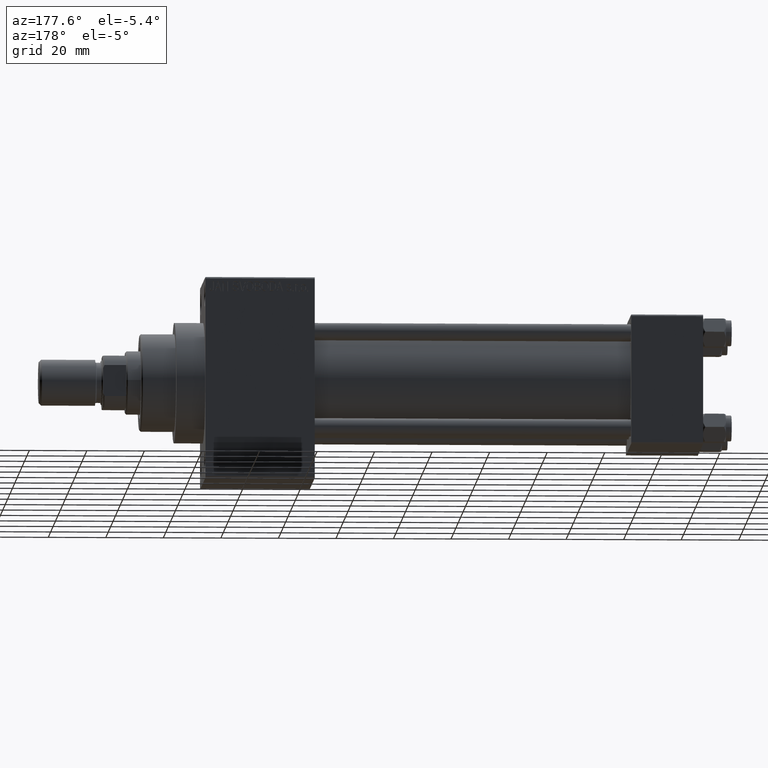
[diagram: clean part render]
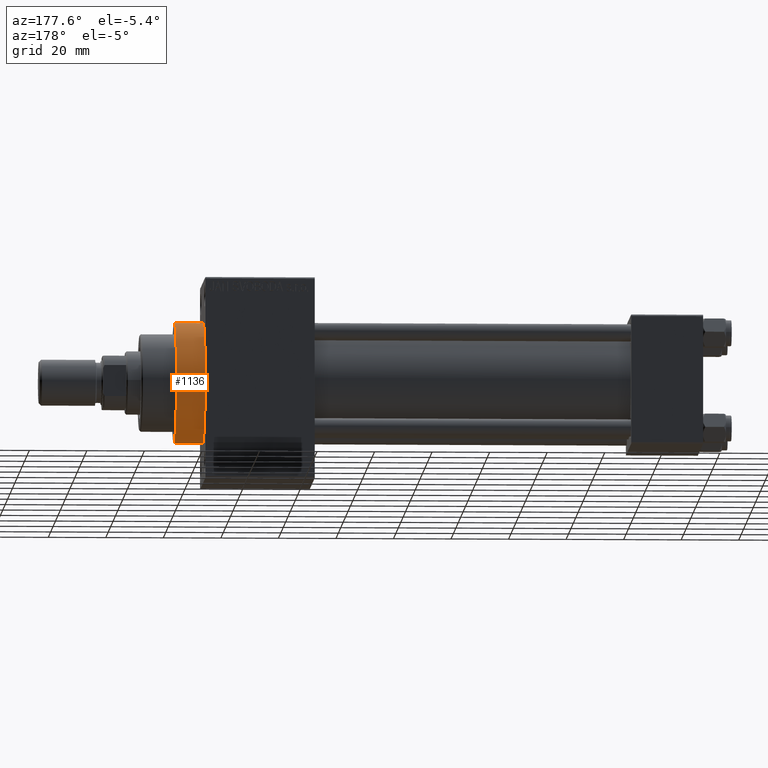
[diagram: same view with one face highlighted and labeled with its STEP entity id]
A machine part, auxiliary view. The second image highlights one B-rep face of the part: STEP entity #1136.
In plain terms, the highlighted cylindrical surface (partial cylindrical patch) has radius 21 mm, axis along (-1, -0, -0).
Its self-contained STEP definition (entity closure, byte-faithful):
#1136 = ADVANCED_FACE ( 'NONE', ( #25662 ), #44174, .T. ) ;
#1885 = VECTOR ( 'NONE', #37680, 1000.000000000000000 ) ;
#2006 = VECTOR ( 'NONE', #23205, 1000.000000000000000 ) ;
#2472 = EDGE_CURVE ( 'NONE', #33754, #20932, #19115, .T. ) ;
#11385 = AXIS2_PLACEMENT_3D ( 'NONE', #33339, #15072, #11474 ) ;
#11474 = DIRECTION ( 'NONE',  ( 0.000000000000000000, 0.000000000000000000, 1.000000000000000000 ) ) ;
#13140 = VERTEX_POINT ( 'NONE', #42380 ) ;
#13567 = CARTESIAN_POINT ( 'NONE',  ( 173.0000000000000284, 2.571758278209441661E-15, -21.00000000000000000 ) ) ;
#14194 = ORIENTED_EDGE ( 'NONE', *, *, #39428, .T. ) ;
#15072 = DIRECTION ( 'NONE',  ( -1.000000000000000000, -0.000000000000000000, -0.000000000000000000 ) ) ;
#17769 = EDGE_CURVE ( 'NONE', #34395, #13140, #31087, .T. ) ;
#17826 = EDGE_CURVE ( 'NONE', #13140, #20932, #41292, .T. ) ;
#17991 = CARTESIAN_POINT ( 'NONE',  ( 183.0000000000000284, 0.000000000000000000, 0.000000000000000000 ) ) ;
#19115 = CIRCLE ( 'NONE', #25260, 21.00000000000000000 ) ;
#19637 = CARTESIAN_POINT ( 'NONE',  ( 183.0000000000000284, 0.000000000000000000, 21.00000000000000000 ) ) ;
#19838 = ORIENTED_EDGE ( 'NONE', *, *, #17769, .F. ) ;
#20932 = VERTEX_POINT ( 'NONE', #45589 ) ;
#23105 = CARTESIAN_POINT ( 'NONE',  ( 183.0000000000000284, 2.571758278209441661E-15, -21.00000000000000000 ) ) ;
#23205 = DIRECTION ( 'NONE',  ( -1.000000000000000000, -0.000000000000000000, -0.000000000000000000 ) ) ;
#23654 = CARTESIAN_POINT ( 'NONE',  ( 173.0000000000000284, 0.000000000000000000, 0.000000000000000000 ) ) ;
#23917 = CARTESIAN_POINT ( 'NONE',  ( 183.0000000000000284, 2.571758278209441661E-15, -21.00000000000000000 ) ) ;
#25260 = AXIS2_PLACEMENT_3D ( 'NONE', #23654, #38319, #31095 ) ;
#25662 = FACE_OUTER_BOUND ( 'NONE', #41690, .T. ) ;
#25683 = DIRECTION ( 'NONE',  ( 0.000000000000000000, 0.000000000000000000, -1.000000000000000000 ) ) ;
#27278 = AXIS2_PLACEMENT_3D ( 'NONE', #17991, #46875, #25683 ) ;
#31087 = CIRCLE ( 'NONE', #27278, 21.00000000000000000 ) ;
#31095 = DIRECTION ( 'NONE',  ( 0.000000000000000000, 0.000000000000000000, -1.000000000000000000 ) ) ;
#33339 = CARTESIAN_POINT ( 'NONE',  ( 183.0000000000000284, 0.000000000000000000, 0.000000000000000000 ) ) ;
#33754 = VERTEX_POINT ( 'NONE', #13567 ) ;
#34395 = VERTEX_POINT ( 'NONE', #23105 ) ;
#37680 = DIRECTION ( 'NONE',  ( -1.000000000000000000, -0.000000000000000000, -0.000000000000000000 ) ) ;
#38319 = DIRECTION ( 'NONE',  ( 1.000000000000000000, 0.000000000000000000, 0.000000000000000000 ) ) ;
#38335 = LINE ( 'NONE', #23917, #2006 ) ;
#39428 = EDGE_CURVE ( 'NONE', #34395, #33754, #38335, .T. ) ;
#41292 = LINE ( 'NONE', #19637, #1885 ) ;
#41690 = EDGE_LOOP ( 'NONE', ( #19838, #14194, #41729, #46765 ) ) ;
#41729 = ORIENTED_EDGE ( 'NONE', *, *, #2472, .T. ) ;
#42380 = CARTESIAN_POINT ( 'NONE',  ( 183.0000000000000284, 0.000000000000000000, 21.00000000000000000 ) ) ;
#44174 = CYLINDRICAL_SURFACE ( 'NONE', #11385, 21.00000000000000000 ) ;
#45589 = CARTESIAN_POINT ( 'NONE',  ( 173.0000000000000284, 0.000000000000000000, 21.00000000000000000 ) ) ;
#46765 = ORIENTED_EDGE ( 'NONE', *, *, #17826, .F. ) ;
#46875 = DIRECTION ( 'NONE',  ( 1.000000000000000000, 0.000000000000000000, 0.000000000000000000 ) ) ;